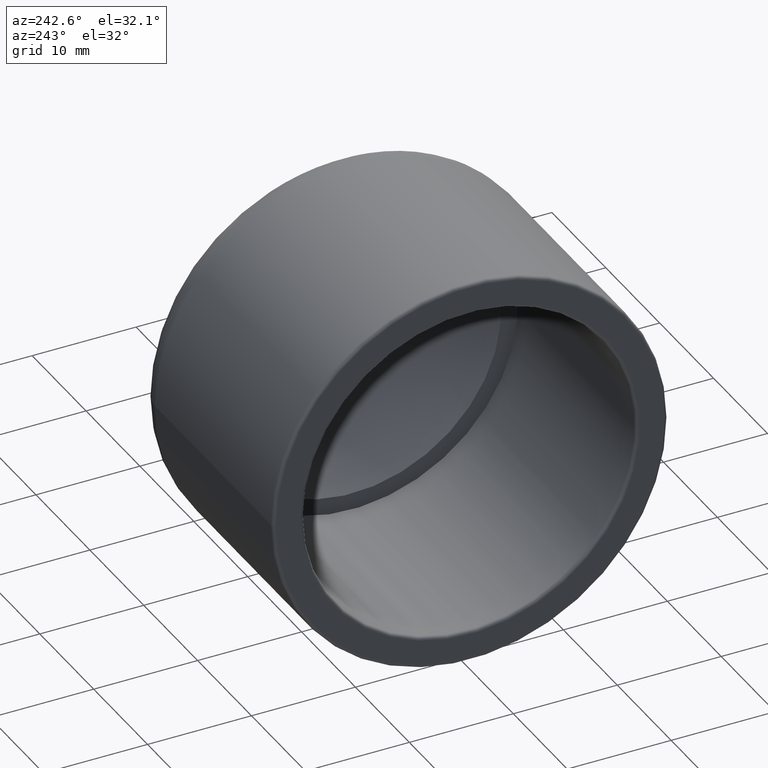
[diagram: clean part render]
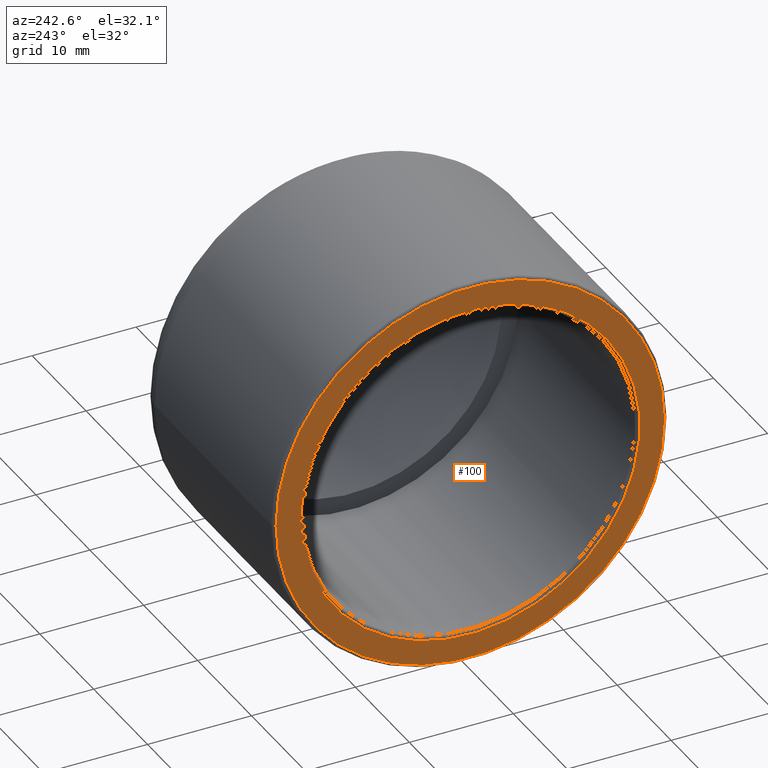
[diagram: same view with one face highlighted and labeled with its STEP entity id]
A machine part, auxiliary view. The second image highlights one B-rep face of the part: STEP entity #100.
In plain terms, the highlighted planar face has unit normal (-1, -0, 0).
Its self-contained STEP definition (entity closure, byte-faithful):
#15=PLANE('',#116);
#24=FACE_BOUND('',#45,.T.);
#32=FACE_OUTER_BOUND('',#44,.T.);
#44=EDGE_LOOP('',(#84));
#45=EDGE_LOOP('',(#85));
#57=CIRCLE('',#115,16.32);
#58=CIRCLE('',#117,18.68);
#65=VERTEX_POINT('',#173);
#66=VERTEX_POINT('',#176);
#73=EDGE_CURVE('',#65,#65,#57,.T.);
#74=EDGE_CURVE('',#66,#66,#58,.T.);
#84=ORIENTED_EDGE('',*,*,#74,.F.);
#85=ORIENTED_EDGE('',*,*,#73,.F.);
#100=ADVANCED_FACE('',(#32,#24),#15,.T.);
#115=AXIS2_PLACEMENT_3D('',#174,#142,#143);
#116=AXIS2_PLACEMENT_3D('',#175,#144,#145);
#117=AXIS2_PLACEMENT_3D('',#177,#146,#147);
#142=DIRECTION('center_axis',(-1.,-2.39838248677285E-16,0.));
#143=DIRECTION('ref_axis',(2.39838248677285E-16,-1.,1.83697019872103E-16));
#144=DIRECTION('center_axis',(-1.,-2.39838248677285E-16,0.));
#145=DIRECTION('ref_axis',(0.,0.,1.));
#146=DIRECTION('center_axis',(1.,2.39838248677285E-16,0.));
#147=DIRECTION('ref_axis',(2.39838248677285E-16,-1.,1.83697019872103E-16));
#173=CARTESIAN_POINT('',(-32.,16.32,-4.9965589405212E-15));
#174=CARTESIAN_POINT('Origin',(-32.,-7.67482395767311E-15,0.));
#175=CARTESIAN_POINT('Origin',(-32.,19.,0.));
#176=CARTESIAN_POINT('',(-32.,18.68,-1.14382011040363E-15));
#177=CARTESIAN_POINT('Origin',(-32.,-7.67482395767311E-15,0.));